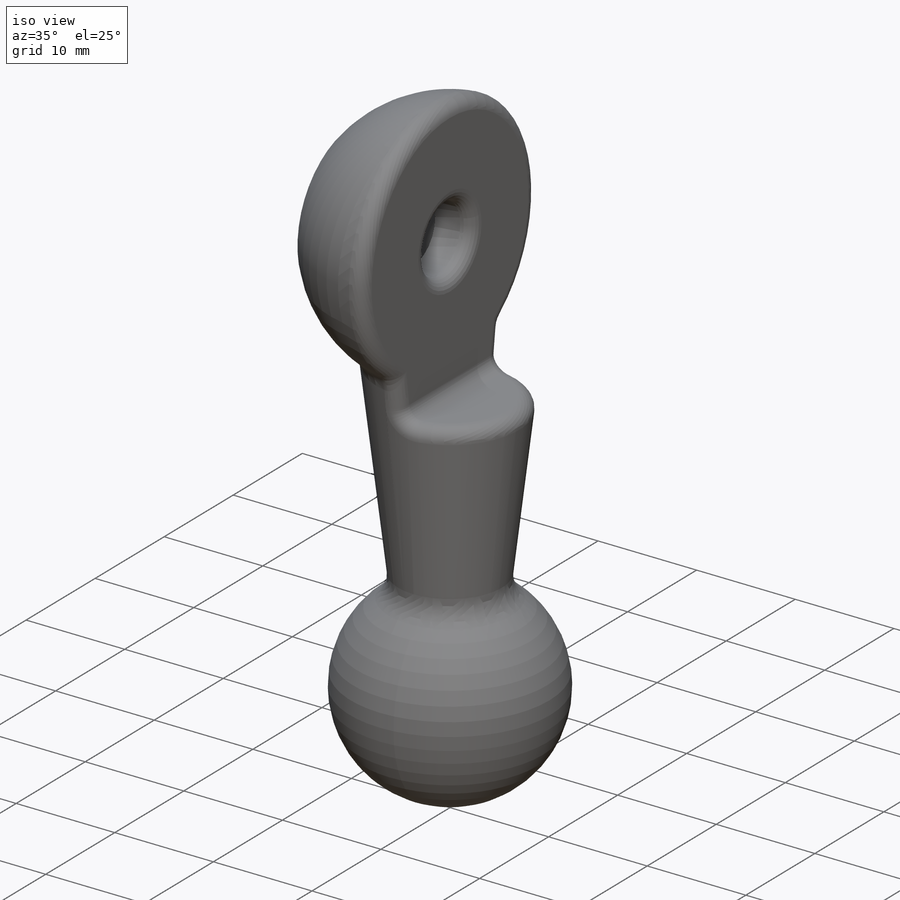
[diagram: iso view]
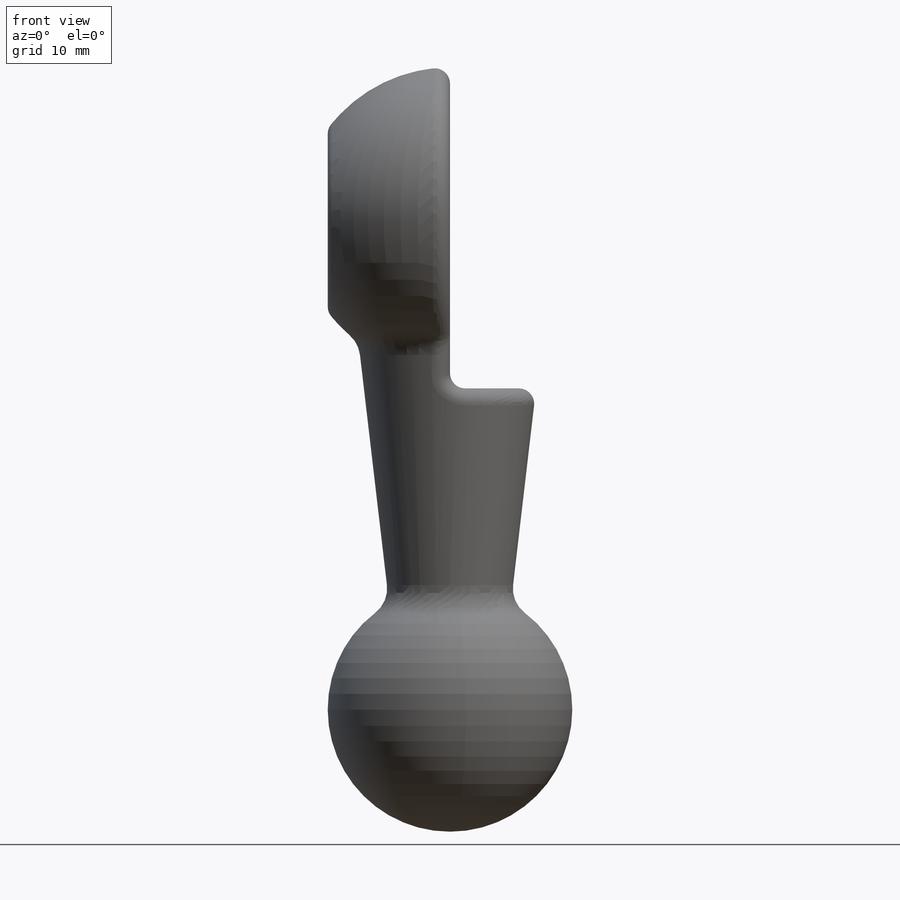
[diagram: front view]
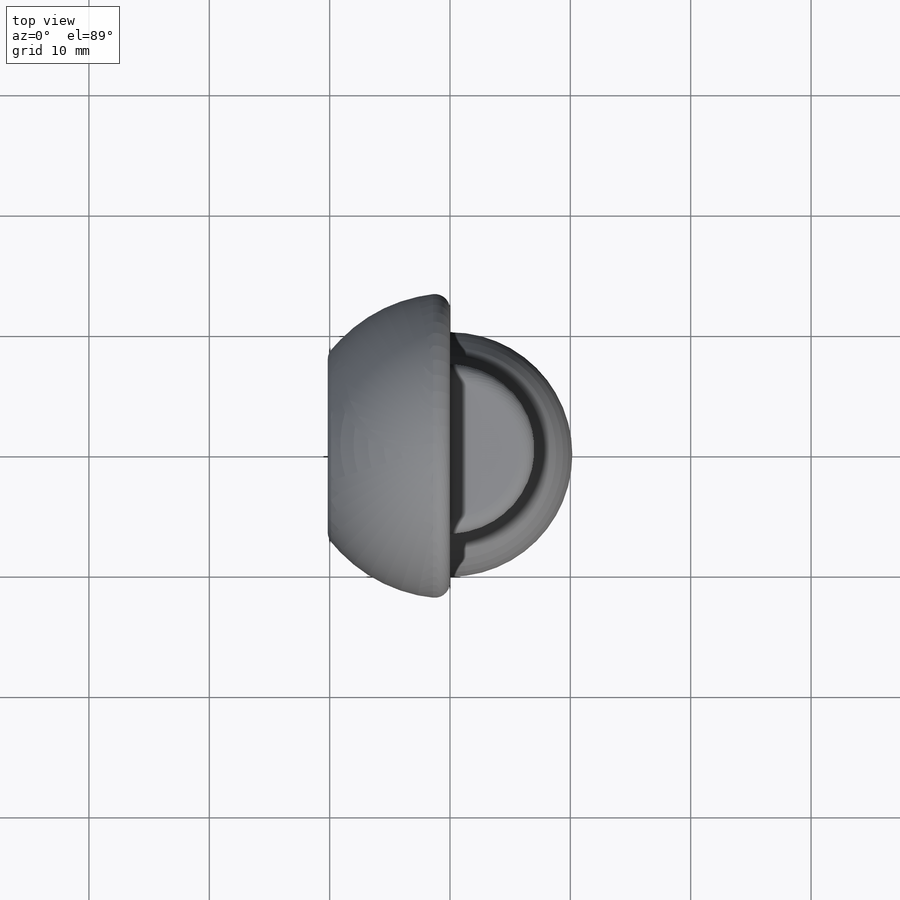
[diagram: top view]
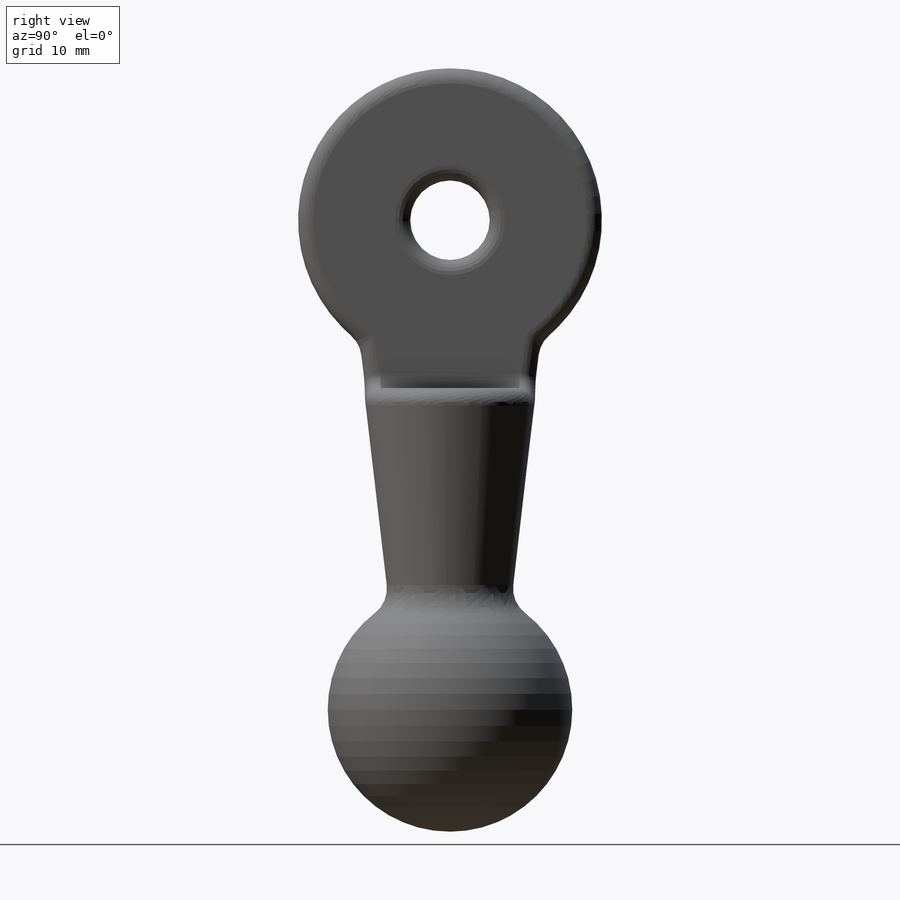
[diagram: right view]
SOLIDWORKS PART (.sldprt)
format: sldprt  version: not decoded by parser v0  size: 317,952 bytes
history: native  units: mm
features: sketch x5, extrude x2, boolean_combine x2, cut_extrude x2, fillet x2, material x1, revolve x1, plane x1 (+18 scaffold rows collapsed; 2 parser-record rows omitted)
feature tree (36):
  scaffold x18  (default folders/planes/origin — collapsed)
  material  "Material <not specified>"
  sketch  "Sketch1"  dims[c1.D1=12.7mm c1.D3=10.16mm c1.D5=12.7mm c1.D2=7.62mm c1.D4=63.5mm c2.D2=7.62mm c2.D5=5.08mm]
  revolve  "main revolution body"  Angle=360deg
  parser-record x2  (decoder bookkeeping rows leaked as tree rows — omitted from the tree; the rows remain in map.json)
  sketch  "Sketch2"  dims[D1=50.8mm D2=27.94mm D3=27.94mm]
  extrude  "Boss-Extrude1"  Depth=25.4mm
  boolean_combine  "Combine1"
  plane  "Plane 0.4in offset R"  Offset=10.16mm
  sketch  "Sketch3"  dims[D1=50.8mm D2=27.94mm D3=27.94mm]
  extrude  "Subtraction cube"  Depth=25.4mm
  boolean_combine  "Combine2"
  sketch  "Sketch4"  dims[D1=6.604mm]
  cut_extrude  "Cut-Extrude1"  [1 undecoded]
  sketch  "Sketch5"  dims[D1=10.922mm]
  cut_extrude  "Cut-Extrude2"  Depth=6.35mm
  fillet  "Fillet1"  Radius=1.27mm
  fillet  "Fillet2"  Radius=2.54mm
decode coverage: 11 of 14 modeling features carry decoded parameters
note: 1 parameter value undecoded
note: suppression state not decoded; provenance and decode notes live in map.json
